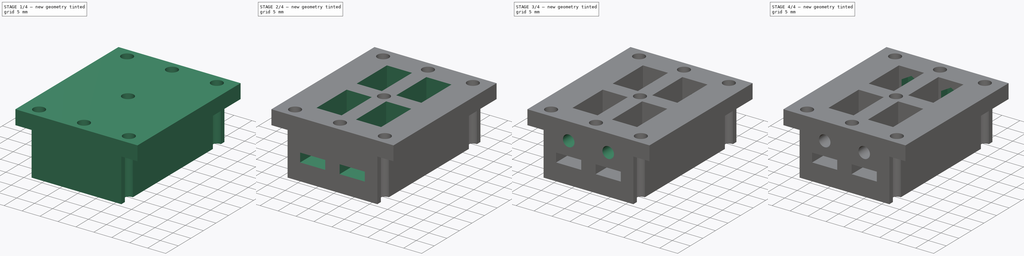
[diagram: build sequence overview — one tinted view per stage of 4, left to right]
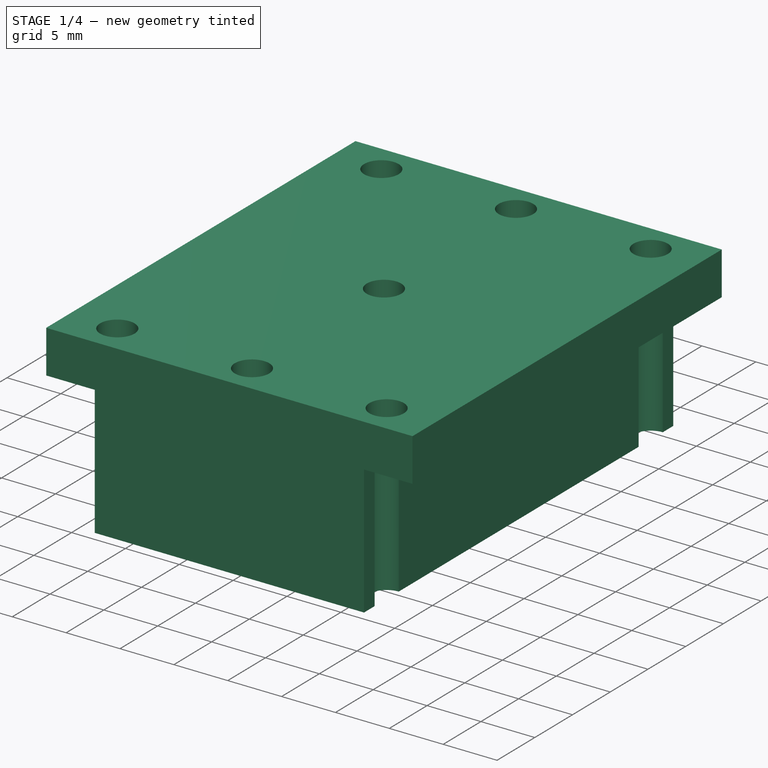
[diagram: stage 1 of 4 — iso view after this stage's code; geometry added in this stage tinted green]
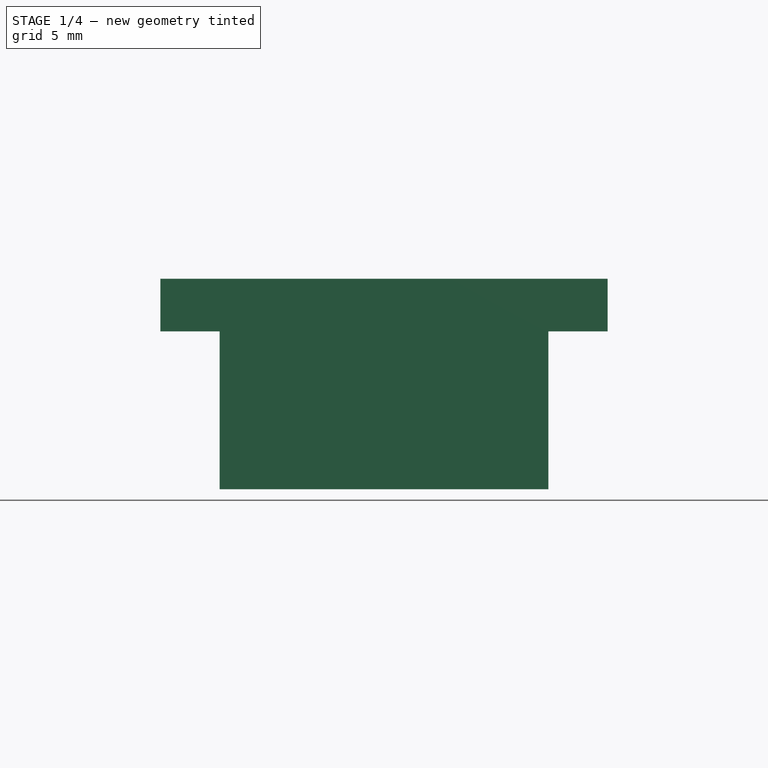
[diagram: stage 1 of 4 — front view after this stage's code; geometry added in this stage tinted green]
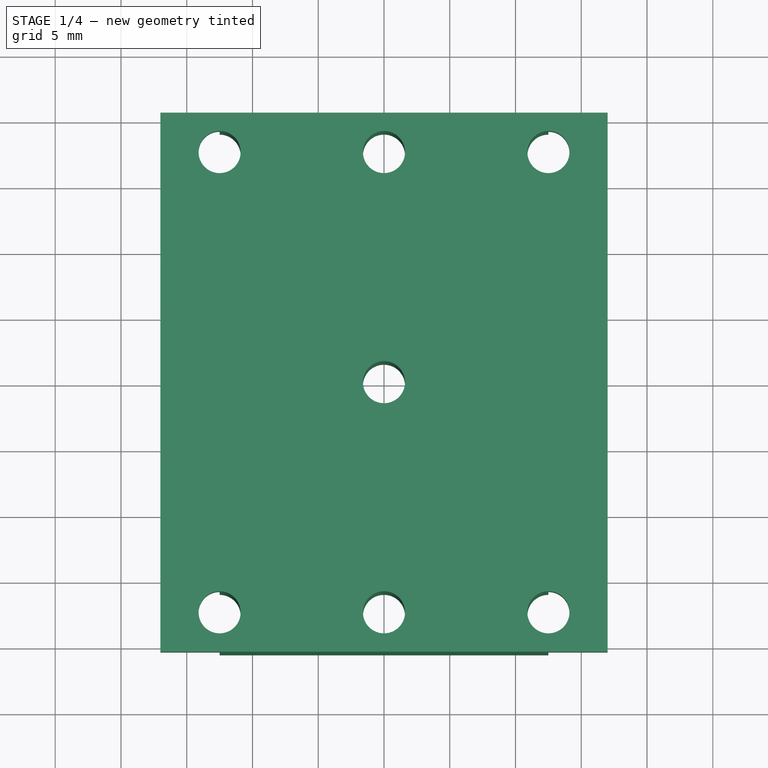
[diagram: stage 1 of 4 — top view after this stage's code; geometry added in this stage tinted green]
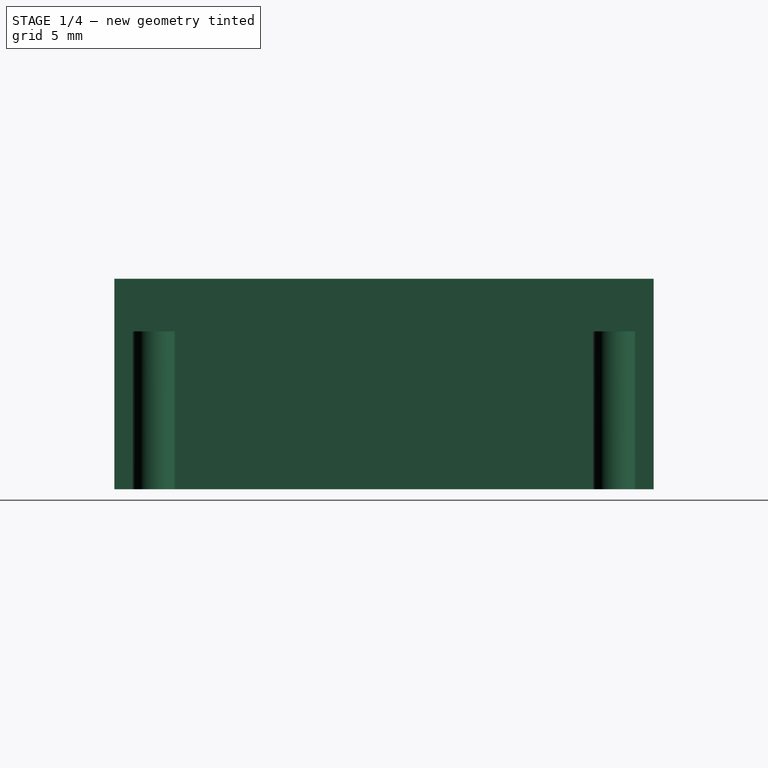
[diagram: stage 1 of 4 — right view after this stage's code; geometry added in this stage tinted green]
FCSTD DOCUMENT  (FreeCAD 0.19R20209 (Git))
Label: X-Axel-Bearing_001b
License: Creative Commons Attribution
LicenseURL: http://creativecommons.org/licenses/by/4.0/
objects: Sketcher::SketchObject×10, PartDesign::Pocket×9, PartDesign::Plane×6, PartDesign::Pad×1, PartDesign::Body×1
note: 37 computed .brp shape members not serialized (recipe doc carries the construction recipe); baked Part::Feature solids carry a one-line shape summary decoded from their .brp

FEATURE [Sketcher::SketchObject] Sketch
  MapMode = 5
  Placement = pos=(0,0,0) rot=(1,0,0;1.5708rad)
  Support = -> [XZ_Plane]
  expr: Constraints[14] = 22 - 6
  sketch-geometry (8):
    g0: LineSegment StartX=12.5 StartY=6 StartZ=0 EndX=12.5 EndY=-6 EndZ=0
    g1: LineSegment StartX=12.5 StartY=-6 StartZ=0 EndX=-12.5 EndY=-6 EndZ=0
    g2: LineSegment StartX=-12.5 StartY=-6 StartZ=0 EndX=-12.5 EndY=6 EndZ=0
    g3: LineSegment StartX=-17 StartY=10 StartZ=0 EndX=17 EndY=10 EndZ=0
    g4: LineSegment StartX=17 StartY=10 StartZ=0 EndX=17 EndY=6 EndZ=0
    g5: LineSegment StartX=17 StartY=6 StartZ=0 EndX=12.5 EndY=6 EndZ=0
    g6: LineSegment StartX=-17 StartY=6 StartZ=0 EndX=-17 EndY=10 EndZ=0
    g7: LineSegment StartX=-12.5 StartY=6 StartZ=0 EndX=-17 EndY=6 EndZ=0
  constraints (21):
    c: Coincident(g0,g1)
    c: Coincident(g1,g2)
    c: Vertical(g0)
    c: Vertical(g2)
    c: Coincident(g3,g4)
    c: Coincident(g4,g5)
    c: Coincident(g7,g6)
    c: Coincident(g6,g3)
    c: Horizontal(g3)
    c: Vertical(g4)
    c: Vertical(g6)
    c: Coincident(g5,g0)
    c: Coincident(g7,g2)
    c: Tangent(g5,g7)
    c: DistanceY(g0,g3) = 16
    c: DistanceY(g0,g0) = 12
    c: Symmetric(g6,g4,g-2)
    c: DistanceX(g3,g3) = 34
    c: DistanceX(g1,g1) = 25
    c: Symmetric(g0,g1,g-2)
    c: DistanceY(g0,g-1) = 6
FEATURE [PartDesign::Pad] Pad
  Length = 41
  Length2 = 100
  Midplane = true
  Placement = pos=(0,0,0) rot=(1,0,0;1.5708rad)
  Profile = -> Sketch
  Refine = true
  Type = 0
FEATURE [Sketcher::SketchObject] Sketch001
  MapMode = 5
  Placement = pos=(0,4.4e-15,10) rot=(0,0,1;3.14159rad)
  Support = -> [Pad]
  sketch-geometry (11):
    g0: LineSegment [constr] StartX=-12.5 StartY=17.5 StartZ=0 EndX=12.5 EndY=17.5 EndZ=0
    g1: LineSegment [constr] StartX=12.5 StartY=17.5 StartZ=0 EndX=12.5 EndY=-17.5 EndZ=0
    g2: LineSegment [constr] StartX=12.5 StartY=-17.5 StartZ=0 EndX=-12.5 EndY=-17.5 EndZ=0
    g3: LineSegment [constr] StartX=-12.5 StartY=-17.5 StartZ=0 EndX=-12.5 EndY=17.5 EndZ=0
    g4: Circle CenterX=-12.5 CenterY=17.5 CenterZ=0 NormalX=0 NormalY=0 NormalZ=1 AngleXU=0 Radius=1.6
    g5: Circle CenterX=12.5 CenterY=17.5 CenterZ=0 NormalX=0 NormalY=0 NormalZ=1 AngleXU=0 Radius=1.6
    g6: Circle CenterX=0 CenterY=17.5 CenterZ=0 NormalX=0 NormalY=0 NormalZ=1 AngleXU=0 Radius=1.6
    g7: Circle CenterX=-12.5 CenterY=-17.5 CenterZ=0 NormalX=0 NormalY=0 NormalZ=1 AngleXU=0 Radius=1.6
    g8: Circle CenterX=12.5 CenterY=-17.5 CenterZ=0 NormalX=0 NormalY=0 NormalZ=1 AngleXU=0 Radius=1.6
    g9: Circle CenterX=0 CenterY=0 CenterZ=0 NormalX=0 NormalY=0 NormalZ=1 AngleXU=0 Radius=1.6
    g10: Circle CenterX=-8e-16 CenterY=-17.5 CenterZ=0 NormalX=0 NormalY=0 NormalZ=1 AngleXU=0 Radius=1.6
  constraints (25):
    c: Coincident(g0,g1)
    c: Coincident(g1,g2)
    c: Coincident(g2,g3)
    c: Coincident(g3,g0)
    c: Horizontal(g0)
    c: Horizontal(g2)
    c: Vertical(g1)
    c: Vertical(g3)
    c: DistanceY(g1,g1) = 35
    c: DistanceX(g0,g0) = 25
    c: Symmetric(g0,g2,g-1)
    c: Equal(g10,g9)
    c: Equal(g9,g8)
    c: Equal(g8,g7)
    c: Equal(g7,g6)
    c: Equal(g6,g5)
    c: Equal(g5,g4)
    c: Diameter(g4) = 3.2
    c: Coincident(g4,g0)
    c: Coincident(g5,g0)
    c: Symmetric(g4,g5,g6)
    c: Coincident(g2,g7)
    c: Coincident(g8,g1)
    c: Coincident(g9,g-1)
    c: Symmetric(g7,g8,g10)
FEATURE [PartDesign::Pocket] Pocket
  BaseFeature = -> Pad
  Length = 5
  Length2 = 100
  Midplane = true
  Placement = pos=(0,0,0) rot=(1,0,0;1.5708rad)
  Profile = -> Sketch001
  Refine = true
  Type = 1
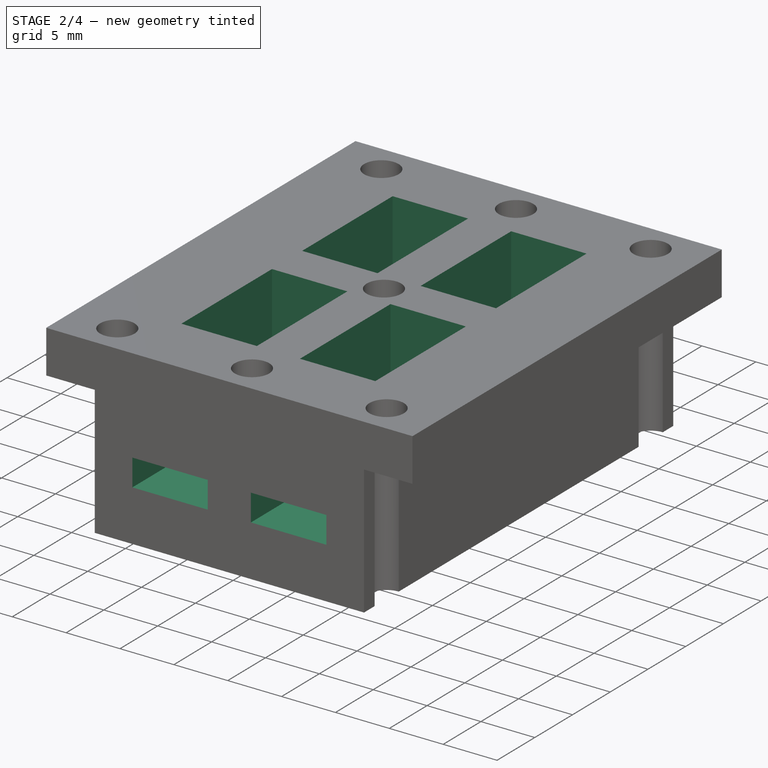
[diagram: stage 2 of 4 — iso view after this stage's code; geometry added in this stage tinted green]
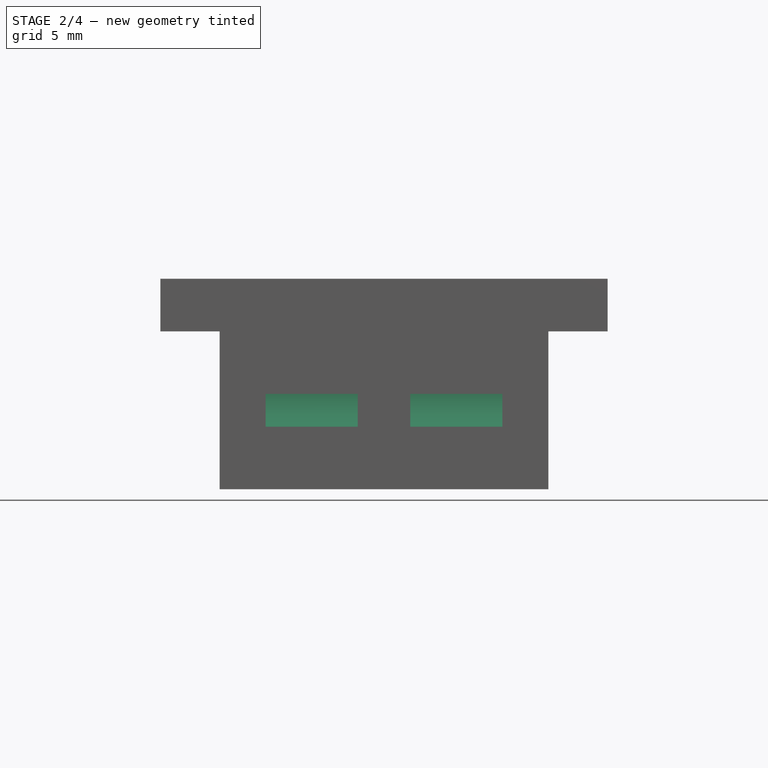
[diagram: stage 2 of 4 — front view after this stage's code; geometry added in this stage tinted green]
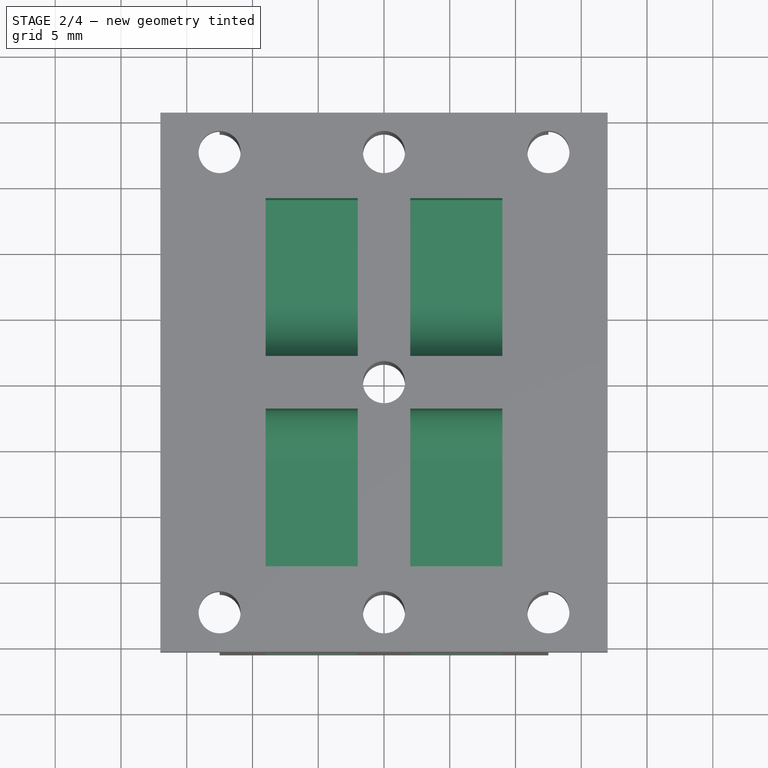
[diagram: stage 2 of 4 — top view after this stage's code; geometry added in this stage tinted green]
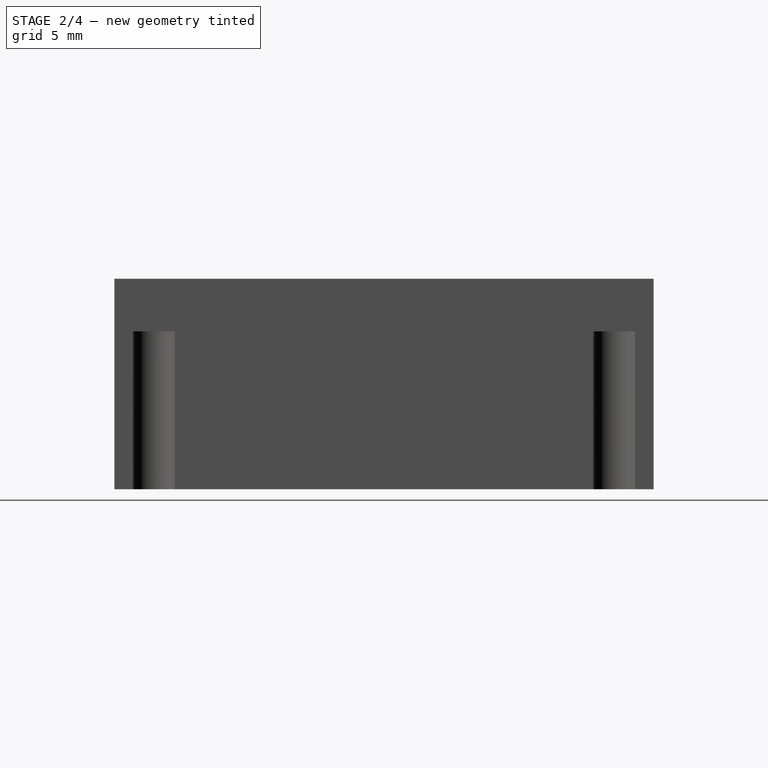
[diagram: stage 2 of 4 — right view after this stage's code; geometry added in this stage tinted green]
FEATURE [PartDesign::Plane] DatumPlane
  AttachmentOffset = pos=(0,0,2) rot=(0,0,1;0rad)
  Length = 60
  MapMode = 5
  Placement = pos=(2,-4e-16,4e-16) rot=(0.57735,0.57735,0.57735;2.0944rad)
  ResizeMode = 0
  Support = -> [YZ_Plane]
  Width = 60
FEATURE [Sketcher::SketchObject] Sketch002
  ExternalGeometry = -> [Pocket]
  MapMode = 5
  Placement = pos=(2,-4e-16,4e-16) rot=(0.57735,0.57735,0.57735;2.0944rad)
  Support = -> [DatumPlane]
  sketch-geometry (14):
    g0: ArcOfCircle CenterX=-6 CenterY=2.75 CenterZ=0 NormalX=0 NormalY=0 NormalZ=1 AngleXU=0 Radius=4 StartAngle=4.71239 EndAngle=6.28319
    g1: LineSegment StartX=-14 StartY=10 StartZ=0 EndX=-14 EndY=1.25 EndZ=0
    g2: LineSegment StartX=-14 StartY=1.25 StartZ=0 EndX=-20.5 EndY=1.25 EndZ=0
    g3: LineSegment StartX=-20.5 StartY=1.25 StartZ=0 EndX=-20.5 EndY=-1.25 EndZ=0
    g4: LineSegment StartX=-20.5 StartY=-1.25 StartZ=0 EndX=-6 EndY=-1.25 EndZ=0
    g5: LineSegment StartX=-2 StartY=2.75 StartZ=0 EndX=-2 EndY=10 EndZ=0
    g6: LineSegment StartX=-14 StartY=10 StartZ=0 EndX=-2 EndY=10 EndZ=0
    g7: ArcOfCircle CenterX=6 CenterY=2.75 CenterZ=0 NormalX=0 NormalY=0 NormalZ=1 AngleXU=0 Radius=4 StartAngle=3.14159 EndAngle=4.71239
    g8: LineSegment StartX=2 StartY=2.75 StartZ=0 EndX=2 EndY=10 EndZ=0
    g9: LineSegment StartX=2 StartY=10 StartZ=0 EndX=14 EndY=10 EndZ=0
    g10: LineSegment StartX=14 StartY=10 StartZ=0 EndX=14 EndY=1.25 EndZ=0
    g11: LineSegment StartX=14 StartY=1.25 StartZ=0 EndX=20.5 EndY=1.25 EndZ=0
    g12: LineSegment StartX=20.5 StartY=1.25 StartZ=0 EndX=20.5 EndY=-1.25 EndZ=0
    g13: LineSegment StartX=20.5 StartY=-1.25 StartZ=0 EndX=6 EndY=-1.25 EndZ=0
  constraints (39):
    c: Angle(g0) = 1.5708
    c: DistanceX(g0,g-1) = 2
    c: Vertical(g1)
    c: Coincident(g1,g2)
    c: Horizontal(g2)
    c: Coincident(g2,g3)
    c: Coincident(g3,g4)
    c: Horizontal(g4)
    c: Vertical(g5)
    c: Coincident(g0,g5)
    c: Horizontal(g0,g0)
    c: Coincident(g4,g0)
    c: Horizontal(g6)
    c: Coincident(g6,g5)
    c: Coincident(g1,g6)
    c: DistanceX(g6,g6) = 12
    c: PointOnObject(g2,g-4)
    c: PointOnObject(g1,g-3)
    c: DistanceY(g3,g2) = 2.5
    c: Symmetric(g3,g2,g-1)
    c: Radius(g0) = 4
    c: Vertical(g8)
    c: Coincident(g8,g9)
    c: Coincident(g9,g10)
    c: Vertical(g10)
    c: Coincident(g10,g11)
    c: Horizontal(g11)
    c: Coincident(g11,g12)
    c: Coincident(g12,g13)
    c: Horizontal(g13)
    c: Equal(g7,g0)
    c: Angle(g7) = 1.5708
    c: Horizontal(g7,g7)
    c: Coincident(g13,g7)
    c: Coincident(g8,g7)
    c: Symmetric(g8,g5,g-2)
    c: Symmetric(g9,g1,g-2)
    c: Symmetric(g12,g3,g-2)
    c: Symmetric(g11,g2,g-2)
FEATURE [PartDesign::Pocket] Pocket001
  BaseFeature = -> Pocket
  Length = 7
  Length2 = 100
  Placement = pos=(0,0,0) rot=(1,0,0;1.5708rad)
  Profile = -> Sketch002
  Refine = true
  Reversed = true
  Type = 0
FEATURE [PartDesign::Plane] DatumPlane001
  AttachmentOffset = pos=(0,0,10) rot=(0,0,1;0rad)
  Length = 60
  MapMode = 5
  Placement = pos=(0,0,10) rot=(0,0,1;0rad)
  ResizeMode = 0
  Support = -> [XY_Plane]
  Width = 60
FEATURE [Sketcher::SketchObject] Sketch003
  ExternalGeometry = -> [Pocket001]
  MapMode = 5
  Placement = pos=(0,0,10) rot=(0,0,1;0rad)
  Support = -> [DatumPlane001]
  sketch-geometry (30):
    g0: LineSegment StartX=-9 StartY=-15 StartZ=0 EndX=9 EndY=-15 EndZ=0
    g1: LineSegment StartX=9 StartY=-15 StartZ=0 EndX=9 EndY=-16 EndZ=0
    g2: LineSegment StartX=9 StartY=-16 StartZ=0 EndX=-9 EndY=-16 EndZ=0
    g3: LineSegment StartX=-9 StartY=-16 StartZ=0 EndX=-9 EndY=-15 EndZ=0
    g4: LineSegment StartX=-9 StartY=-17 StartZ=0 EndX=9 EndY=-17 EndZ=0
    g5: LineSegment StartX=9 StartY=-17 StartZ=0 EndX=9 EndY=-18 EndZ=0
    g6: LineSegment StartX=9 StartY=-18 StartZ=0 EndX=-9 EndY=-18 EndZ=0
    g7: LineSegment StartX=-9 StartY=-18 StartZ=0 EndX=-9 EndY=-17 EndZ=0
    g8: LineSegment StartX=-9 StartY=-19 StartZ=0 EndX=9 EndY=-19 EndZ=0
    g9: LineSegment StartX=9 StartY=-19 StartZ=0 EndX=9 EndY=-20 EndZ=0
    g10: LineSegment StartX=9 StartY=-20 StartZ=0 EndX=-9 EndY=-20 EndZ=0
    g11: LineSegment StartX=-9 StartY=-20 StartZ=0 EndX=-9 EndY=-19 EndZ=0
    g12: GeomPoint X=0 Y=-15.5 Z=0
    g13: GeomPoint X=0 Y=-17.5 Z=0
    g14: GeomPoint X=2.6e-15 Y=-19.5 Z=0
    g15: LineSegment StartX=-9 StartY=20 StartZ=0 EndX=9 EndY=20 EndZ=0
    g16: LineSegment StartX=9 StartY=20 StartZ=0 EndX=9 EndY=19 EndZ=0
    g17: LineSegment StartX=9 StartY=19 StartZ=0 EndX=-9 EndY=19 EndZ=0
    g18: LineSegment StartX=-9 StartY=19 StartZ=0 EndX=-9 EndY=20 EndZ=0
    g19: LineSegment StartX=-9 StartY=18 StartZ=0 EndX=9 EndY=18 EndZ=0
    g20: LineSegment StartX=9 StartY=18 StartZ=0 EndX=9 EndY=17 EndZ=0
    g21: LineSegment StartX=9 StartY=17 StartZ=0 EndX=-9 EndY=17 EndZ=0
    g22: LineSegment StartX=-9 StartY=17 StartZ=0 EndX=-9 EndY=18 EndZ=0
    g23: LineSegment StartX=-9 StartY=16 StartZ=0 EndX=9 EndY=16 EndZ=0
    g24: LineSegment StartX=9 StartY=16 StartZ=0 EndX=9 EndY=15 EndZ=0
    g25: LineSegment StartX=9 StartY=15 StartZ=0 EndX=-9 EndY=15 EndZ=0
    g26: LineSegment StartX=-9 StartY=15 StartZ=0 EndX=-9 EndY=16 EndZ=0
    g27: GeomPoint X=8e-16 Y=19.5 Z=0
    g28: GeomPoint X=8e-16 Y=17.5 Z=0
    g29: GeomPoint X=1e-15 Y=15.5 Z=0
  constraints (74):
    c: Coincident(g0,g1)
    c: Coincident(g1,g2)
    c: Coincident(g2,g3)
    c: Coincident(g3,g0)
    c: Horizontal(g0)
    c: Horizontal(g2)
    c: Vertical(g1)
    c: Vertical(g3)
    c: Coincident(g4,g5)
    c: Coincident(g5,g6)
    c: Coincident(g6,g7)
    c: Coincident(g7,g4)
    c: Horizontal(g4)
    c: Horizontal(g6)
    c: Vertical(g5)
    c: Vertical(g7)
    c: Coincident(g8,g9)
    c: Coincident(g9,g10)
    c: Coincident(g10,g11)
    c: Coincident(g11,g8)
    c: Horizontal(g8)
    c: Horizontal(g10)
    c: Vertical(g9)
    c: Vertical(g11)
    c: Equal(g0,g4)
    c: Equal(g4,g8)
    c: Equal(g3,g7)
    c: Equal(g7,g11)
    c: Symmetric(g8,g9,g14)
    c: Symmetric(g4,g5,g13)
    c: Symmetric(g0,g1,g12)
    c: Vertical(g12,g13)
    c: Symmetric(g0,g9,g13)
    c: DistanceX(g0,g0) = 18
    c: DistanceY(g3,g3) = 1
    c: DistanceY(g4,g2) = 1
    c: Coincident(g13,g-3)
    c: Coincident(g15,g16)
    c: Coincident(g16,g17)
    c: Coincident(g17,g18)
    c: Coincident(g18,g15)
    c: Horizontal(g15)
    c: Horizontal(g17)
    c: Vertical(g16)
    c: Vertical(g18)
    c: Coincident(g19,g20)
    c: Coincident(g20,g21)
    c: Coincident(g21,g22)
    c: Coincident(g22,g19)
    c: Horizontal(g19)
    c: Horizontal(g21)
    c: Vertical(g20)
    c: Vertical(g22)
    c: Coincident(g23,g24)
    c: Coincident(g24,g25)
    c: Coincident(g25,g26)
    c: Coincident(g26,g23)
    c: Horizontal(g23)
    c: Horizontal(g25)
    c: Vertical(g24)
    c: Vertical(g26)
    c: Equal(g15,g19)
    c: Equal(g19,g23)
    c: Equal(g18,g22)
    c: Equal(g22,g26)
    c: Symmetric(g23,g24,g29)
    c: Symmetric(g19,g20,g28)
    c: Symmetric(g15,g16,g27)
    c: Vertical(g27,g28)
    c: Symmetric(g15,g24,g28)
    c: Equal(g0,g15) = 18
    c: Equal(g3,g18) = 1
    c: DistanceY(g19,g17) = 1
    c: Coincident(g28,g-4)
FEATURE [PartDesign::Pocket] Pocket002
  BaseFeature = -> Pocket001
  Length = 1
  Length2 = 100
  Placement = pos=(0,0,0) rot=(1,0,0;1.5708rad)
  Profile = -> Sketch001
  Refine = true
  Type = 0
FEATURE [PartDesign::Plane] DatumPlane002
  AttachmentOffset = pos=(0,0,-2) rot=(0,0,1;0rad)
  Length = 60
  MapMode = 5
  Placement = pos=(-2,4e-16,-4e-16) rot=(0.57735,0.57735,0.57735;2.0944rad)
  ResizeMode = 0
  Support = -> [YZ_Plane]
  Width = 60
FEATURE [Sketcher::SketchObject] Sketch004
  ExternalGeometry = -> [Pocket002]
  MapMode = 5
  Placement = pos=(-2,4e-16,-4e-16) rot=(0.57735,0.57735,0.57735;2.0944rad)
  Support = -> [DatumPlane002]
  sketch-geometry (14):
    g0: ArcOfCircle CenterX=-6 CenterY=2.75 CenterZ=0 NormalX=0 NormalY=0 NormalZ=1 AngleXU=0 Radius=4 StartAngle=4.71239 EndAngle=6.28319
    g1: LineSegment StartX=-2 StartY=10 StartZ=0 EndX=-14 EndY=10 EndZ=0
    g2: LineSegment StartX=-14 StartY=10 StartZ=0 EndX=-14 EndY=1.25 EndZ=0
    g3: LineSegment StartX=-14 StartY=1.25 StartZ=0 EndX=-20.5 EndY=1.25 EndZ=0
    g4: LineSegment StartX=-20.5 StartY=1.25 StartZ=0 EndX=-20.5 EndY=-1.25 EndZ=0
    g5: LineSegment StartX=-20.5 StartY=-1.25 StartZ=0 EndX=-6 EndY=-1.25 EndZ=0
    g6: LineSegment StartX=-2 StartY=10 StartZ=0 EndX=-2 EndY=2.75 EndZ=0
    g7: ArcOfCircle CenterX=6 CenterY=2.75 CenterZ=0 NormalX=0 NormalY=0 NormalZ=1 AngleXU=0 Radius=4 StartAngle=3.14159 EndAngle=4.71239
    g8: LineSegment StartX=2 StartY=2.75 StartZ=0 EndX=2 EndY=10 EndZ=0
    g9: LineSegment StartX=2 StartY=10 StartZ=0 EndX=14 EndY=10 EndZ=0
    g10: LineSegment StartX=14 StartY=10 StartZ=0 EndX=14 EndY=1.25 EndZ=0
    g11: LineSegment StartX=14 StartY=1.25 StartZ=0 EndX=20.5 EndY=1.25 EndZ=0
    g12: LineSegment StartX=20.5 StartY=1.25 StartZ=0 EndX=20.5 EndY=-1.25 EndZ=0
    g13: LineSegment StartX=20.5 StartY=-1.25 StartZ=0 EndX=6 EndY=-1.25 EndZ=0
  constraints (26):
    c: Radius(g0) = 4
    c: Horizontal(g1)
    c: Coincident(g1,g2)
    c: Coincident(g2,g3)
    c: Horizontal(g3)
    c: Coincident(g3,g4)
    c: Coincident(g4,g5)
    c: Horizontal(g5)
    c: Vertical(g6)
    c: Coincident(g6,g1)
    c: Coincident(g6,g0)
    c: Vertical(g4)
    c: Coincident(g5,g0)
    c: Angle(g7) = 1.5708
    c: Vertical(g8)
    c: Coincident(g8,g9)
    c: Horizontal(g9)
    c: Coincident(g9,g10)
    c: Coincident(g10,g11)
    c: Coincident(g11,g12)
    c: Vertical(g12)
    c: Coincident(g12,g13)
    c: Horizontal(g13)
    c: Horizontal(g11)
    c: Coincident(g8,g7)
    c: Coincident(g13,g7)
FEATURE [PartDesign::Pocket] Pocket003
  BaseFeature = -> Pocket002
  Length = 7
  Length2 = 100
  Placement = pos=(0,0,0) rot=(1,0,0;1.5708rad)
  Profile = -> Sketch004
  Refine = true
  Type = 0
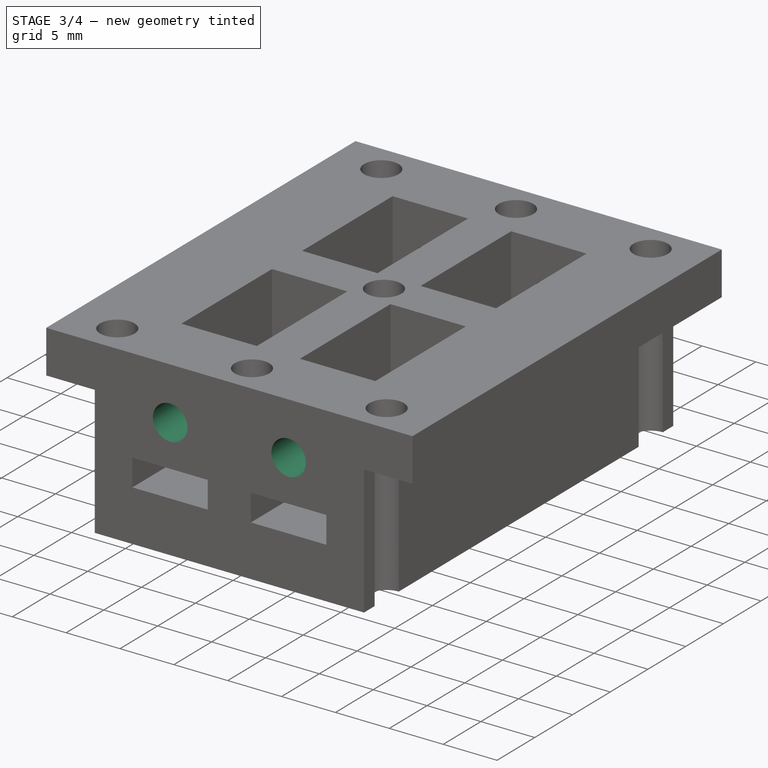
[diagram: stage 3 of 4 — iso view after this stage's code; geometry added in this stage tinted green]
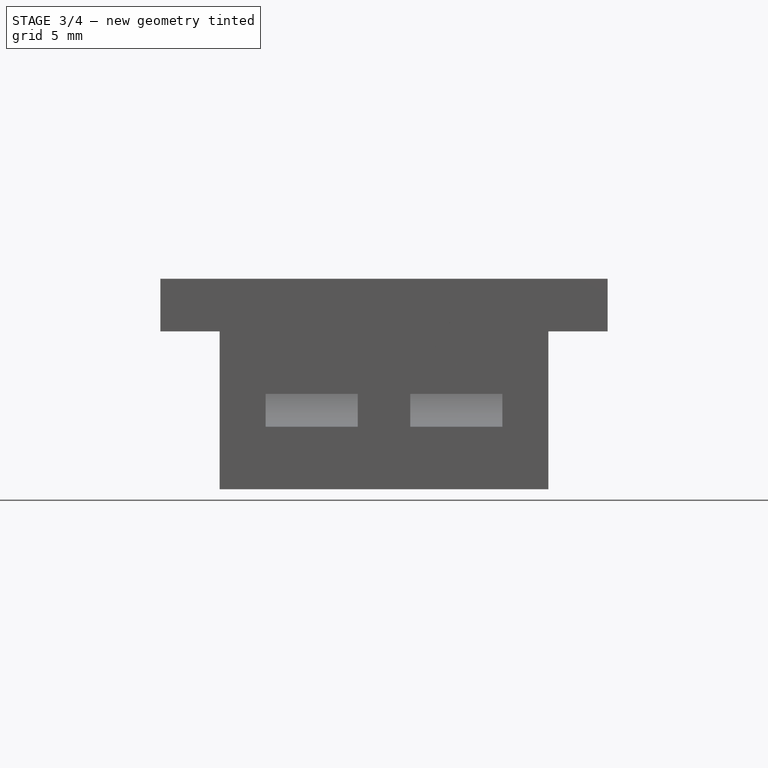
[diagram: stage 3 of 4 — front view after this stage's code; geometry added in this stage tinted green]
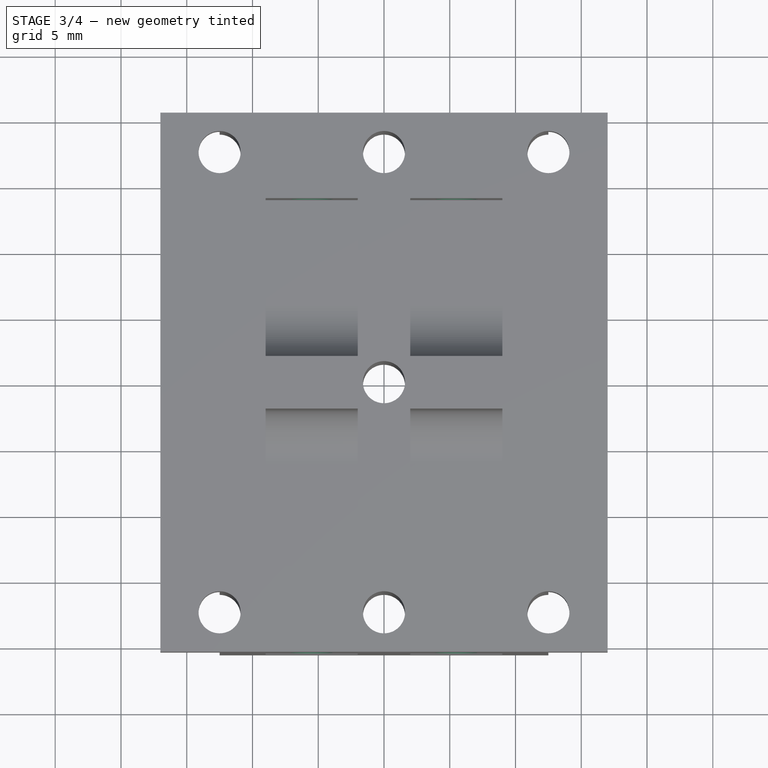
[diagram: stage 3 of 4 — top view after this stage's code; geometry added in this stage tinted green]
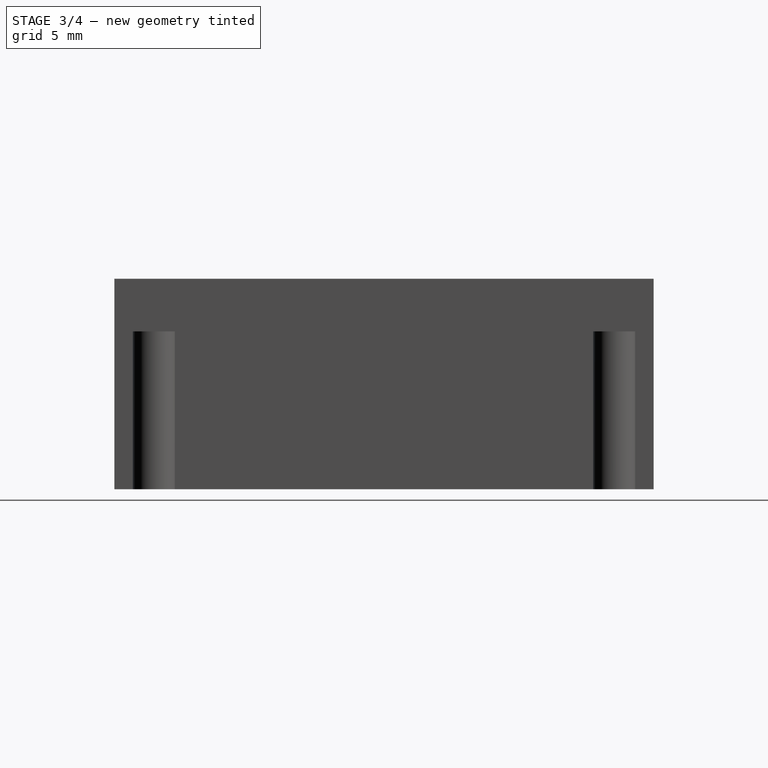
[diagram: stage 3 of 4 — right view after this stage's code; geometry added in this stage tinted green]
FEATURE [PartDesign::Plane] DatumPlane003
  AttachmentOffset = pos=(0,0,14) rot=(0,0,1;0rad)
  Length = 60
  MapMode = 5
  Placement = pos=(0,-14,-3.1e-15) rot=(1,0,0;1.5708rad)
  ResizeMode = 0
  Support = -> [XZ_Plane]
  Width = 60
FEATURE [Sketcher::SketchObject] Sketch005
  ExternalGeometry = -> [Pocket003]
  MapMode = 5
  Placement = pos=(0,-14,-3.1e-15) rot=(1,0,0;1.5708rad)
  Support = -> [DatumPlane003]
  sketch-geometry (4):
    g0: GeomPoint X=-5.5 Y=5.125 Z=0
    g1: GeomPoint X=5.5 Y=5.125 Z=0
    g2: Circle CenterX=-5.5 CenterY=5.125 CenterZ=0 NormalX=0 NormalY=0 NormalZ=1 AngleXU=0 Radius=1.6
    g3: Circle CenterX=5.5 CenterY=5.125 CenterZ=0 NormalX=0 NormalY=0 NormalZ=1 AngleXU=0 Radius=1.6
  constraints (4):
    c: Equal(g3,g2)
    c: Diameter(g3) = 3.2
    c: Coincident(g3,g1)
    c: Coincident(g2,g0)
FEATURE [PartDesign::Pocket] Pocket004
  BaseFeature = -> Pocket003
  Length = 2.5
  Length2 = 100
  Placement = pos=(0,0,0) rot=(1,0,0;1.5708rad)
  Profile = -> Sketch005
  Refine = true
  Reversed = true
  Type = 1
FEATURE [Sketcher::SketchObject] Sketch006
  ExternalGeometry = -> [Pocket004]
  MapMode = 5
  Placement = pos=(0,-14,-3.1e-15) rot=(1,0,0;1.5708rad)
  Support = -> [DatumPlane003]
  sketch-geometry (14):
    g0: LineSegment StartX=-2.75014 StartY=3.5374 StartZ=0 EndX=-2.75014 EndY=6.71283 EndZ=0
    g1: LineSegment StartX=-2.75014 StartY=6.71283 StartZ=0 EndX=-5.50014 EndY=8.30054 EndZ=0
    g2: LineSegment StartX=-5.50014 StartY=8.30054 StartZ=0 EndX=-8.25014 EndY=6.71283 EndZ=0
    g3: LineSegment StartX=-8.25014 StartY=6.71283 StartZ=0 EndX=-8.25014 EndY=3.5374 EndZ=0
    g4: LineSegment StartX=-8.25014 StartY=3.5374 StartZ=0 EndX=-5.50014 EndY=1.94969 EndZ=0
    g5: LineSegment StartX=-5.50014 StartY=1.94969 StartZ=0 EndX=-2.75014 EndY=3.5374 EndZ=0
    g6: Circle [constr] CenterX=-5.50014 CenterY=5.12512 CenterZ=0 NormalX=0 NormalY=0 NormalZ=1 AngleXU=0 Radius=3.17543
    g7: LineSegment StartX=9.85 StartY=3.53729 StartZ=0 EndX=9.85 EndY=6.71271 EndZ=0
    g8: LineSegment StartX=9.85 StartY=6.71271 StartZ=0 EndX=7.1 EndY=8.30043 EndZ=0
    g9: LineSegment StartX=7.1 StartY=8.30043 StartZ=0 EndX=4.35 EndY=6.71271 EndZ=0
    g10: LineSegment StartX=4.35 StartY=6.71271 StartZ=0 EndX=4.35 EndY=3.53729 EndZ=0
    g11: LineSegment StartX=4.35 StartY=3.53729 StartZ=0 EndX=7.1 EndY=1.94957 EndZ=0
    g12: LineSegment StartX=7.1 StartY=1.94957 StartZ=0 EndX=9.85 EndY=3.53729 EndZ=0
    g13: Circle [constr] CenterX=7.1 CenterY=5.125 CenterZ=0 NormalX=0 NormalY=0 NormalZ=1 AngleXU=0 Radius=3.17543
  constraints (32):
    c: Coincident(g0,g1)
    c: Coincident(g1,g2)
    c: Coincident(g2,g3)
    c: Coincident(g3,g4)
    c: Coincident(g4,g5)
    c: Coincident(g5,g0)
    c: Equal(g0, g1-g5) x5
    c: PointOnObject(g0,g6)
    c: PointOnObject(g1,g6)
    c: PointOnObject(g2,g6)
    c: PointOnObject(g3,g6)
    c: PointOnObject(g4,g6)
    c: PointOnObject(g5,g6)
    c: Coincident(g7,g8)
    c: Coincident(g8,g9)
    c: Coincident(g9,g10)
    c: Coincident(g10,g11)
    c: Coincident(g11,g12)
    c: Coincident(g12,g7)
    c: Equal(g7, g8-g12) x5
    c: PointOnObject(g7,g13)
    c: PointOnObject(g8,g13)
    c: PointOnObject(g9,g13)
    c: PointOnObject(g10,g13)
    c: PointOnObject(g11,g13)
    c: PointOnObject(g12,g13)
    c: Vertical(g13,g8)
    c: Vertical(g6,g1)
    c: Equal(g6,g13)
    c: DistanceX(g2,g0) = 5.5
    c: Coincident(g6,g-3)
    c: Coincident(g13,g-4)
FEATURE [PartDesign::Pocket] Pocket005
  BaseFeature = -> Pocket004
  Length = 2.5
  Length2 = 100
  Placement = pos=(0,0,0) rot=(1,0,0;1.5708rad)
  Profile = -> Sketch006
  Refine = true
  Reversed = true
  Type = 0
FEATURE [PartDesign::Plane] DatumPlane004
  AttachmentOffset = pos=(0,0,-14) rot=(0,0,1;0rad)
  Length = 60
  MapMode = 5
  Placement = pos=(0,14,3.1e-15) rot=(1,0,0;1.5708rad)
  ResizeMode = 0
  Support = -> [XZ_Plane]
  Width = 60
FEATURE [Sketcher::SketchObject] Sketch007
  ExternalGeometry = -> [Pocket005]
  MapMode = 5
  Placement = pos=(0,14,3.1e-15) rot=(1,0,0;1.5708rad)
  Support = -> [DatumPlane004]
  sketch-geometry (2):
    g0: Circle CenterX=-5.5 CenterY=5.125 CenterZ=0 NormalX=0 NormalY=0 NormalZ=1 AngleXU=0 Radius=1.6
    g1: Circle CenterX=5.5 CenterY=5.125 CenterZ=0 NormalX=0 NormalY=0 NormalZ=1 AngleXU=0 Radius=1.6
  constraints (2):
    c: Equal(g1,g0)
    c: Diameter(g0) = 3.2
FEATURE [PartDesign::Pocket] Pocket006
  BaseFeature = -> Pocket005
  Length = 5
  Length2 = 100
  Placement = pos=(0,0,0) rot=(1,0,0;1.5708rad)
  Profile = -> Sketch007
  Refine = true
  Type = 1
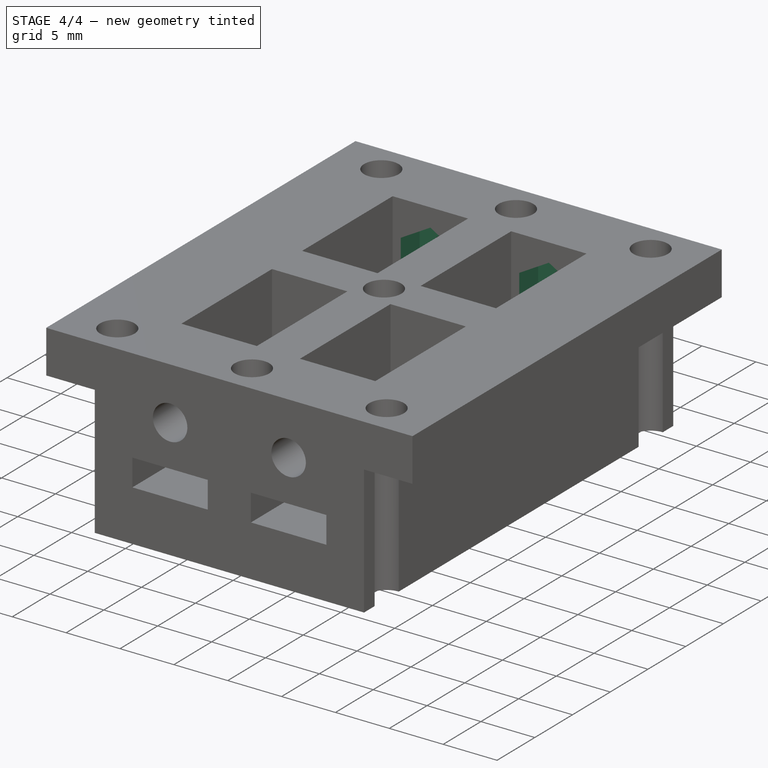
[diagram: stage 4 of 4 — iso view after this stage's code; geometry added in this stage tinted green]
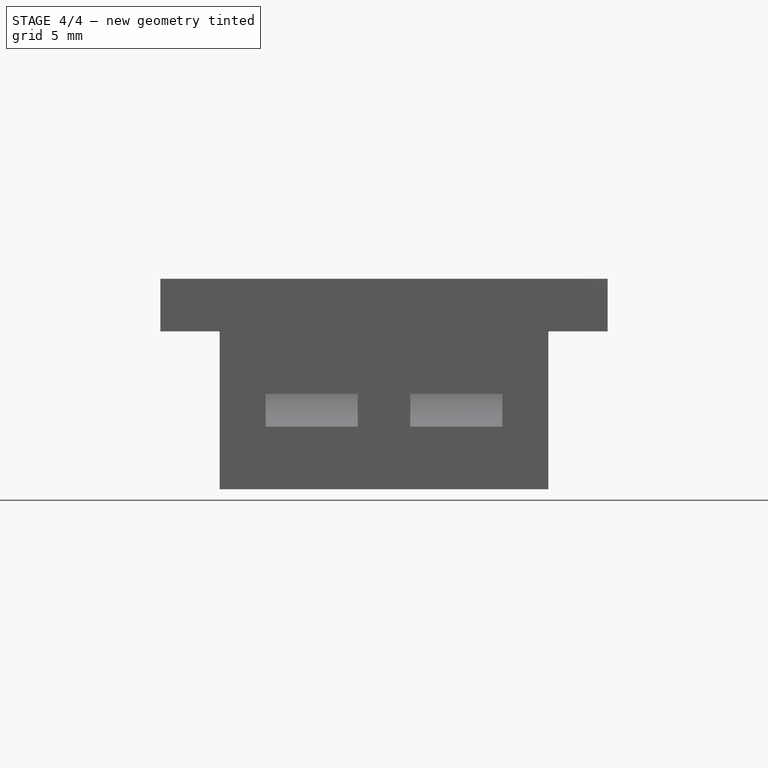
[diagram: stage 4 of 4 — front view after this stage's code; geometry added in this stage tinted green]
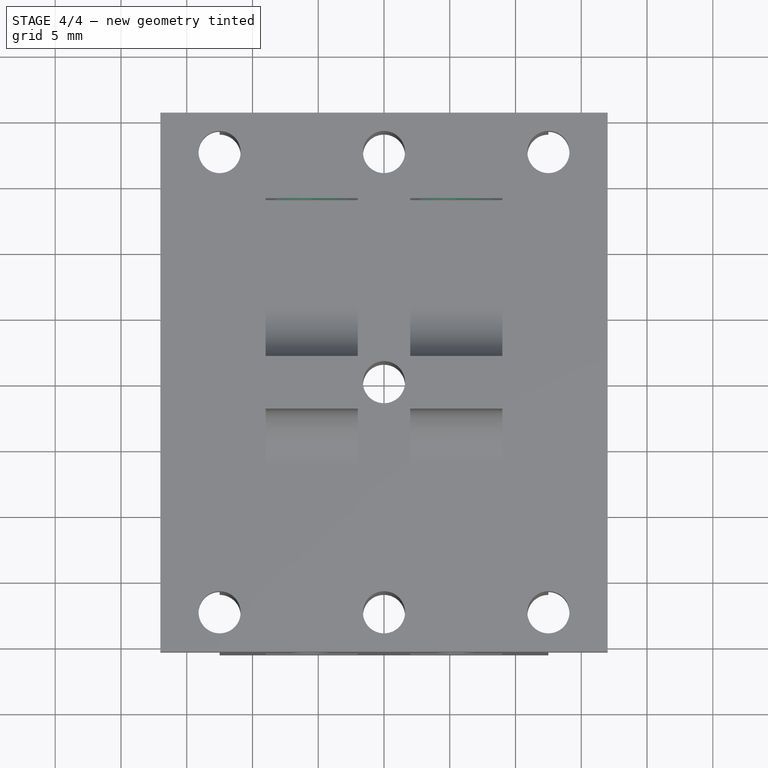
[diagram: stage 4 of 4 — top view after this stage's code; geometry added in this stage tinted green]
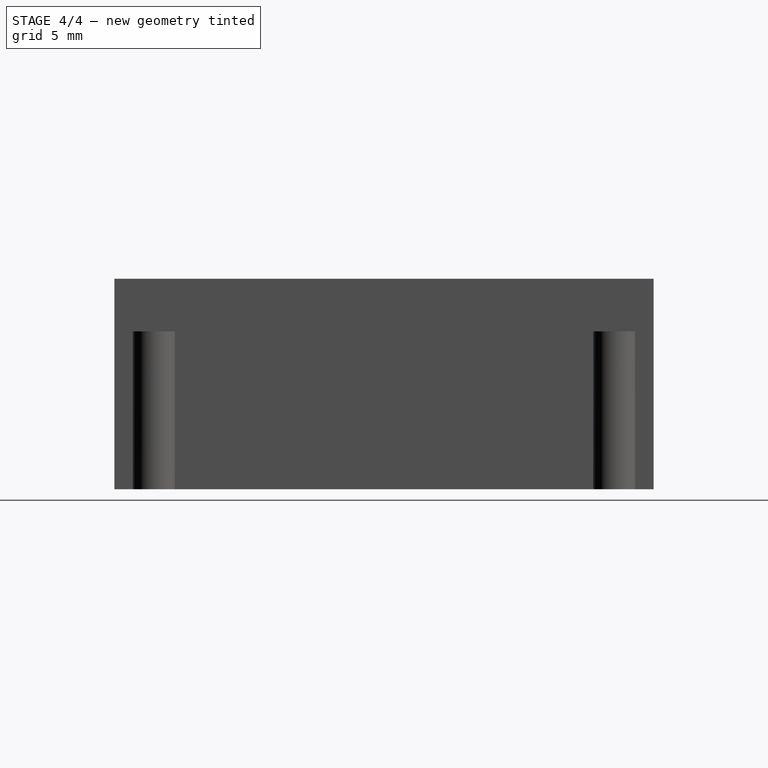
[diagram: stage 4 of 4 — right view after this stage's code; geometry added in this stage tinted green]
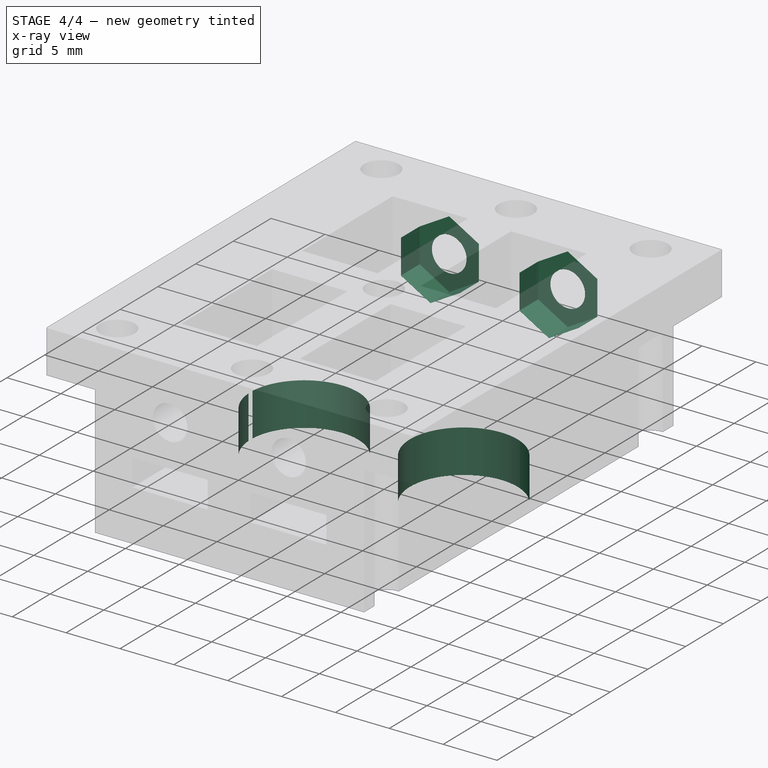
[diagram: stage 4 of 4 — x-ray composite at the iso view; earlier geometry ghosted, this stage's added geometry solid]
FEATURE [Sketcher::SketchObject] Sketch008
  ExternalGeometry = -> [Pocket006]
  MapMode = 5
  Placement = pos=(0,14,3.1e-15) rot=(1,0,0;1.5708rad)
  Support = -> [DatumPlane004]
  sketch-geometry (14):
    g0: LineSegment StartX=-2.75 StartY=3.53729 StartZ=0 EndX=-2.75 EndY=6.71271 EndZ=0
    g1: LineSegment StartX=-2.75 StartY=6.71271 StartZ=0 EndX=-5.5 EndY=8.30043 EndZ=0
    g2: LineSegment StartX=-5.5 StartY=8.30043 StartZ=0 EndX=-8.25 EndY=6.71271 EndZ=0
    g3: LineSegment StartX=-8.25 StartY=6.71271 StartZ=0 EndX=-8.25 EndY=3.53729 EndZ=0
    g4: LineSegment StartX=-8.25 StartY=3.53729 StartZ=0 EndX=-5.5 EndY=1.94957 EndZ=0
    g5: LineSegment StartX=-5.5 StartY=1.94957 StartZ=0 EndX=-2.75 EndY=3.53729 EndZ=0
    g6: Circle [constr] CenterX=-5.5 CenterY=5.125 CenterZ=0 NormalX=0 NormalY=0 NormalZ=1 AngleXU=0 Radius=3.17543
    g7: LineSegment StartX=8.25 StartY=3.53729 StartZ=0 EndX=8.25 EndY=6.71271 EndZ=0
    g8: LineSegment StartX=8.25 StartY=6.71271 StartZ=0 EndX=5.5 EndY=8.30043 EndZ=0
    g9: LineSegment StartX=5.5 StartY=8.30043 StartZ=0 EndX=2.75 EndY=6.71271 EndZ=0
    g10: LineSegment StartX=2.75 StartY=6.71271 StartZ=0 EndX=2.75 EndY=3.53729 EndZ=0
    g11: LineSegment StartX=2.75 StartY=3.53729 StartZ=0 EndX=5.5 EndY=1.94957 EndZ=0
    g12: LineSegment StartX=5.5 StartY=1.94957 StartZ=0 EndX=8.25 EndY=3.53729 EndZ=0
    g13: Circle [constr] CenterX=5.5 CenterY=5.125 CenterZ=0 NormalX=0 NormalY=0 NormalZ=1 AngleXU=0 Radius=3.17543
  constraints (30):
    c: Coincident(g0,g1)
    c: Coincident(g1,g2)
    c: Coincident(g2,g3)
    c: Coincident(g3,g4)
    c: Coincident(g4,g5)
    c: Coincident(g5,g0)
    c: Equal(g0, g1-g5) x5
    c: PointOnObject(g0,g6)
    c: PointOnObject(g1,g6)
    c: PointOnObject(g2,g6)
    c: PointOnObject(g3,g6)
    c: PointOnObject(g4,g6)
    c: PointOnObject(g5,g6)
    c: Coincident(g7,g8)
    c: Coincident(g8,g9)
    c: Coincident(g9,g10)
    c: Coincident(g10,g11)
    c: Coincident(g11,g12)
    c: Coincident(g12,g7)
    c: Equal(g7, g8-g12) x5
    c: PointOnObject(g7,g13)
    c: PointOnObject(g8,g13)
    c: PointOnObject(g9,g13)
    c: PointOnObject(g10,g13)
    c: PointOnObject(g11,g13)
    c: PointOnObject(g12,g13)
    c: Vertical(g13,g8)
    c: Vertical(g6,g1)
    c: Equal(g6,g13)
    c: Distance(g2,g0) = 5.5
FEATURE [PartDesign::Pocket] Pocket007
  BaseFeature = -> Pocket006
  Length = 2.5
  Length2 = 100
  Placement = pos=(0,0,0) rot=(1,0,0;1.5708rad)
  Profile = -> Sketch008
  Refine = true
  Type = 0
FEATURE [PartDesign::Plane] DatumPlane005
  AttachmentOffset = pos=(0,0,-6) rot=(0,0,1;0rad)
  Length = 60
  MapMode = 5
  Placement = pos=(0,0,-6) rot=(0,0,1;0rad)
  ResizeMode = 0
  Support = -> [XY_Plane]
  Width = 60
FEATURE [Sketcher::SketchObject] Sketch009
  MapMode = 5
  Placement = pos=(0,0,-6) rot=(0,0,1;0rad)
  Support = -> [DatumPlane005]
  sketch-geometry (2):
    g0: Circle CenterX=-7.4 CenterY=0 CenterZ=0 NormalX=0 NormalY=0 NormalZ=1 AngleXU=0 Radius=5
    g1: Circle CenterX=7.4 CenterY=0 CenterZ=0 NormalX=0 NormalY=0 NormalZ=1 AngleXU=0 Radius=5
  constraints (5):
    c: Horizontal(g1,g0)
    c: Equal(g0,g1)
    c: Diameter(g0) = 10
    c: Symmetric(g1,g0,g-1)
    c: DistanceX(g0,g1) = 14.8
FEATURE [PartDesign::Pocket] Pocket008
  BaseFeature = -> Pocket007
  Length = 4
  Length2 = 100
  Placement = pos=(0,0,0) rot=(1,0,0;1.5708rad)
  Profile = -> Sketch009
  Refine = true
  Reversed = true
  Type = 0
FEATURE [PartDesign::Body] Body
  Group = -> [Sketch,Pad,Sketch001,Pocket,DatumPlane,Sketch002,Pocket001,DatumPlane001,Sketch003,Pocket002,DatumPlane002,Sketch004,Pocket003,DatumPlane003,Sketch005,Pocket004,Sketch006,Pocket005,DatumPlane004,Sketch007,Pocket006,Sketch008,Pocket007,DatumPlane005,Sketch009,Pocket008]
  Origin = -> Origin
  Tip = -> Pocket008
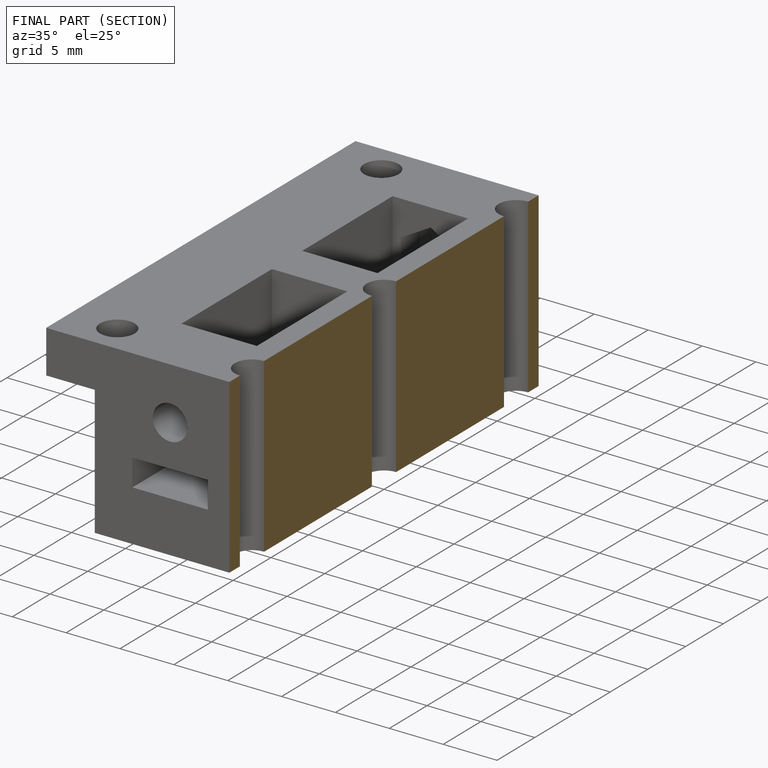
[diagram: finished part — half-section view (interior)]
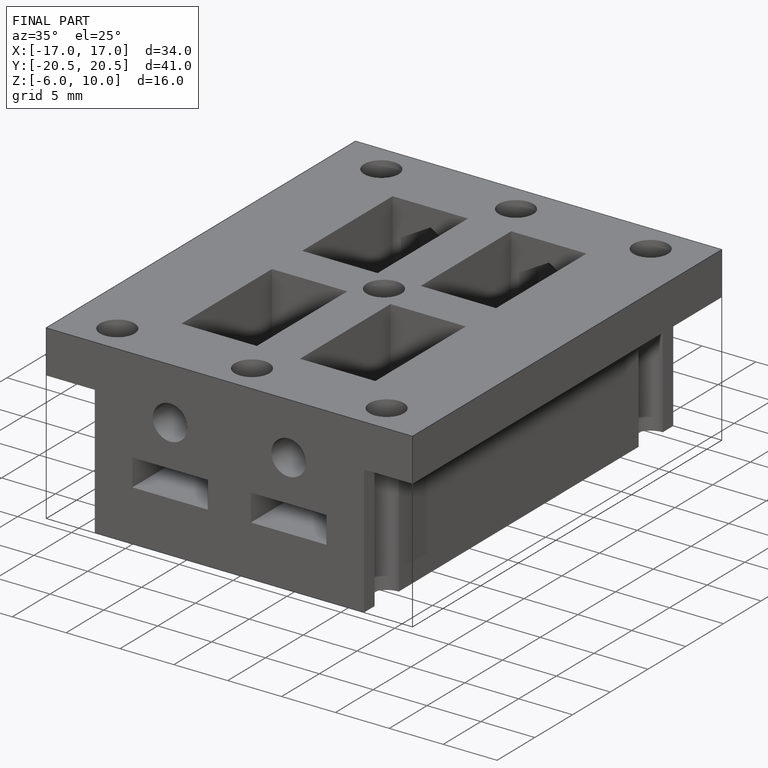
[diagram: finished part — iso view with bounding-box wireframe]
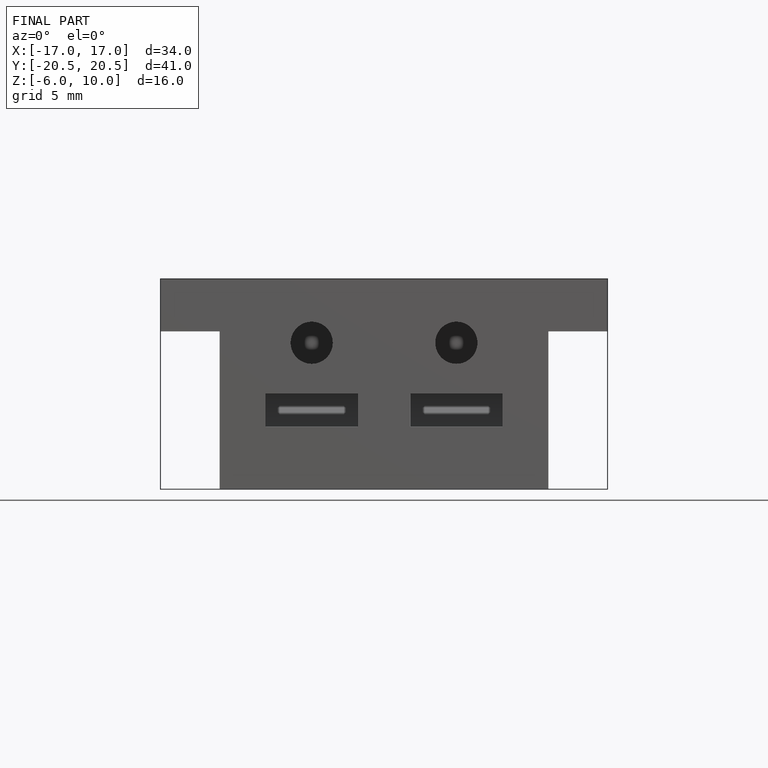
[diagram: finished part — front view with bounding-box wireframe]
